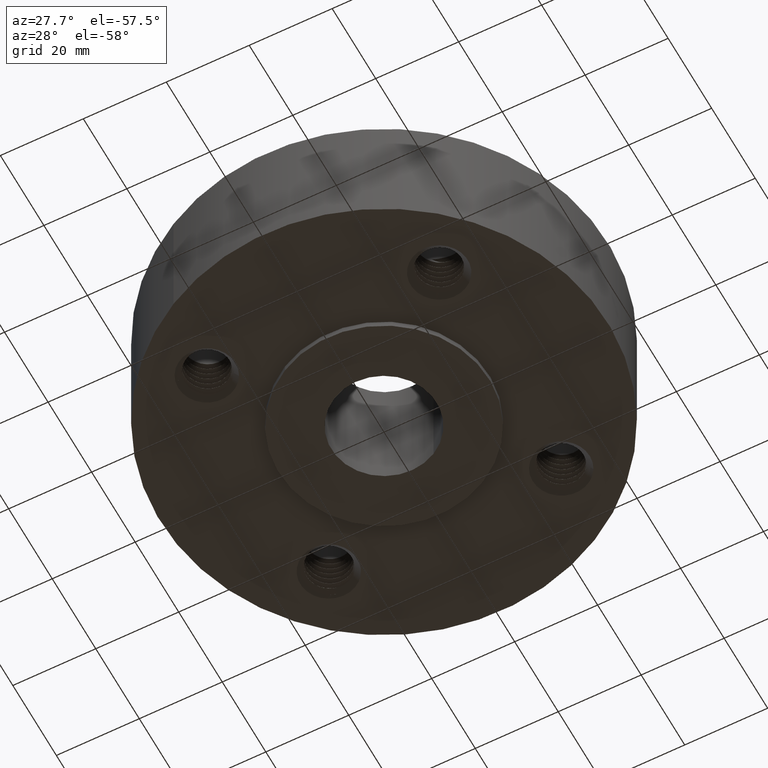
[diagram: clean part render]
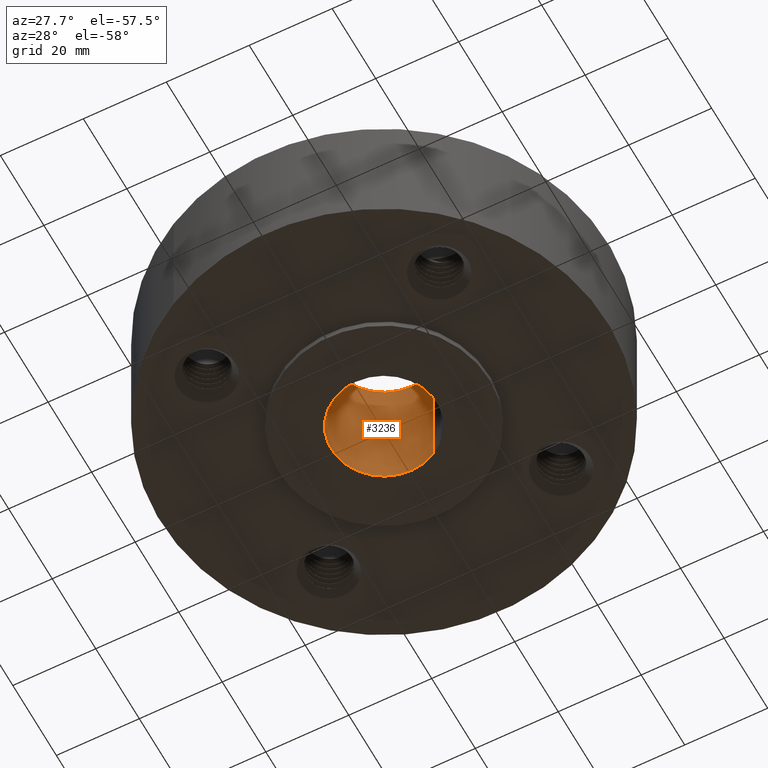
[diagram: same view with one face highlighted and labeled with its STEP entity id]
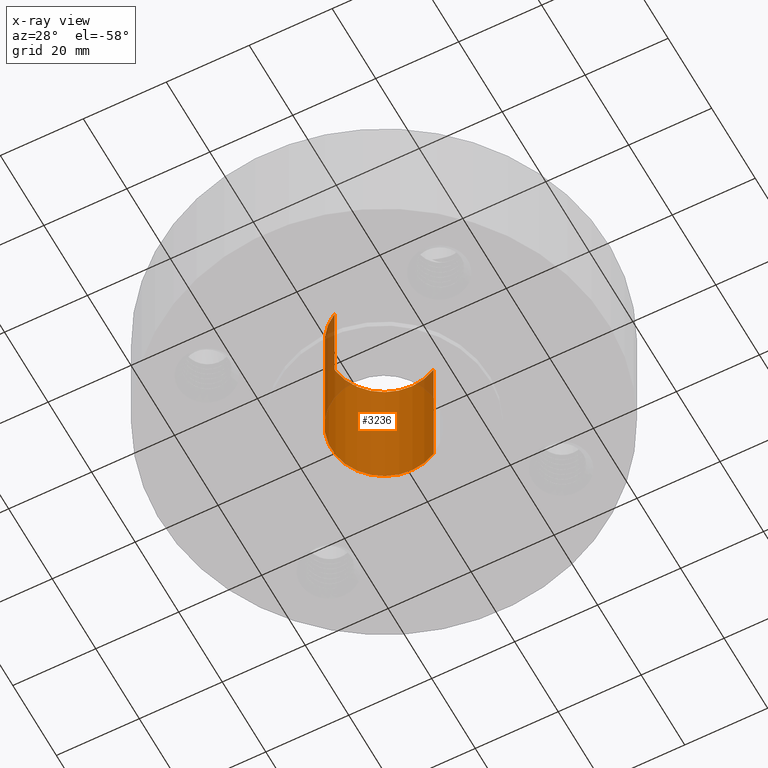
[diagram: x-ray of the same camera — body ghosted, the highlighted face saturated]
A machine part, auxiliary view. The second image highlights one B-rep face of the part: STEP entity #3236.
The next image is the same camera in x-ray: the body ghosted, the highlighted face saturated — about 9% of this face is hidden behind the body in this view.
In plain terms, the highlighted cylindrical surface (partial cylindrical patch) has radius 12.7 mm, axis along (0, 0, -1).
Its self-contained STEP definition (entity closure, byte-faithful):
#3186=AXIS2_PLACEMENT_3D('Circle Axis2P3D',#3184,#3185,$) ;
#3197=AXIS2_PLACEMENT_3D('Cylinder Axis2P3D',#3194,#3195,#3196) ;
#3227=AXIS2_PLACEMENT_3D('Circle Axis2P3D',#3225,#3226,$) ;
#3179=CARTESIAN_POINT('Vertex',(0.239712769303,0.438791280947,-0.0625000000003)) ;
#3181=CARTESIAN_POINT('Vertex',(-0.239712769303,-0.438791280947,-0.0625000000003)) ;
#3184=CARTESIAN_POINT('Axis2P3D Location',(0.,0.,-0.0625000000003)) ;
#3194=CARTESIAN_POINT('Axis2P3D Location',(0.,0.,0.593750000002)) ;
#3203=CARTESIAN_POINT('Vertex',(0.239712769303,0.438791280947,1.25000000001)) ;
#3205=CARTESIAN_POINT('Vertex',(-0.239712769303,-0.438791280947,1.25000000001)) ;
#3208=CARTESIAN_POINT('Line Origine',(0.239712769303,0.438791280947,0.593750000002)) ;
#3213=CARTESIAN_POINT('Line Origine',(-0.239712769303,-0.438791280947,0.593750000002)) ;
#3225=CARTESIAN_POINT('Axis2P3D Location',(0.,0.,1.25000000001)) ;
#3185=DIRECTION('Axis2P3D Direction',(0.,0.,-0.0393700787402)) ;
#3195=DIRECTION('Axis2P3D Direction',(0.,0.,-0.0393700787402)) ;
#3196=DIRECTION('Axis2P3D XDirection',(-0.0188750212049,-0.0345504945626,0.)) ;
#3209=DIRECTION('Vector Direction',(0.,0.,-0.0393700787402)) ;
#3214=DIRECTION('Vector Direction',(0.,0.,-0.0393700787402)) ;
#3226=DIRECTION('Axis2P3D Direction',(0.,0.,-0.0393700787402)) ;
#3210=VECTOR('Line Direction',#3209,0.0393700787402) ;
#3215=VECTOR('Line Direction',#3214,0.0393700787402) ;
#3231=ORIENTED_EDGE('',*,*,#3229,.F.) ;
#3232=ORIENTED_EDGE('',*,*,#3217,.T.) ;
#3233=ORIENTED_EDGE('',*,*,#3188,.T.) ;
#3234=ORIENTED_EDGE('',*,*,#3212,.F.) ;
#3236=ADVANCED_FACE('PartBody',(#3235),#3198,.F.) ;
#3187=CIRCLE('generated circle',#3186,0.500000000002) ;
#3228=CIRCLE('generated circle',#3227,0.500000000002) ;
#3198=CYLINDRICAL_SURFACE('generated cylinder',#3197,0.500000000002) ;
#3188=EDGE_CURVE('',#3182,#3180,#3187,.T.) ;
#3212=EDGE_CURVE('',#3204,#3180,#3211,.T.) ;
#3217=EDGE_CURVE('',#3206,#3182,#3216,.T.) ;
#3229=EDGE_CURVE('',#3206,#3204,#3228,.T.) ;
#3230=EDGE_LOOP('',(#3231,#3232,#3233,#3234)) ;
#3235=FACE_OUTER_BOUND('',#3230,.T.) ;
#3211=LINE('Line',#3208,#3210) ;
#3216=LINE('Line',#3213,#3215) ;
#3180=VERTEX_POINT('',#3179) ;
#3182=VERTEX_POINT('',#3181) ;
#3204=VERTEX_POINT('',#3203) ;
#3206=VERTEX_POINT('',#3205) ;